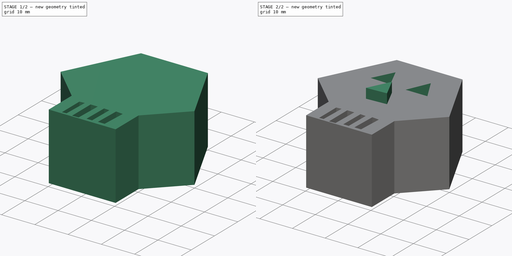
[diagram: build sequence overview — one tinted view per stage of 2, left to right]
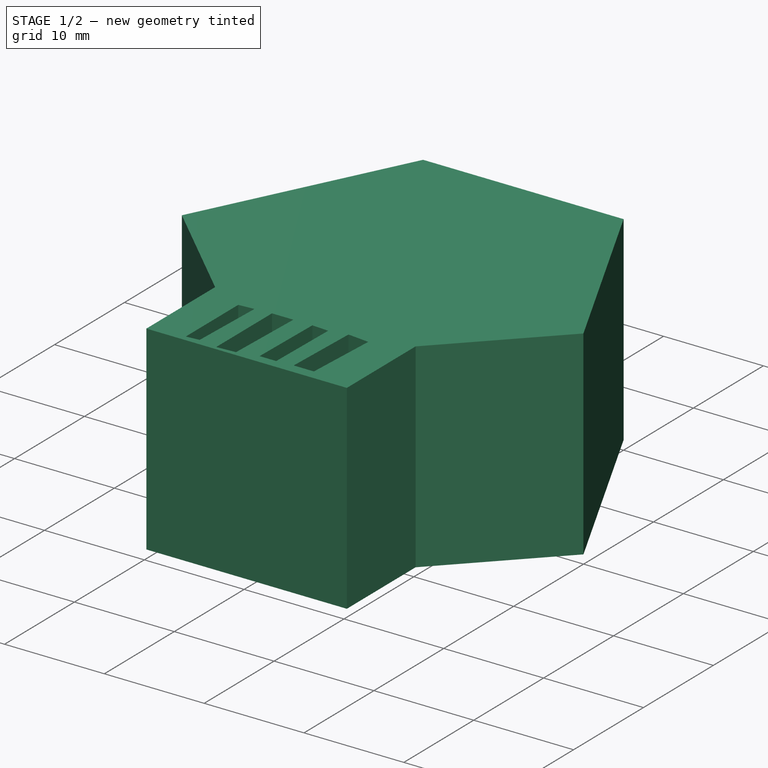
[diagram: stage 1 of 2 — iso view after this stage's code; geometry added in this stage tinted green]
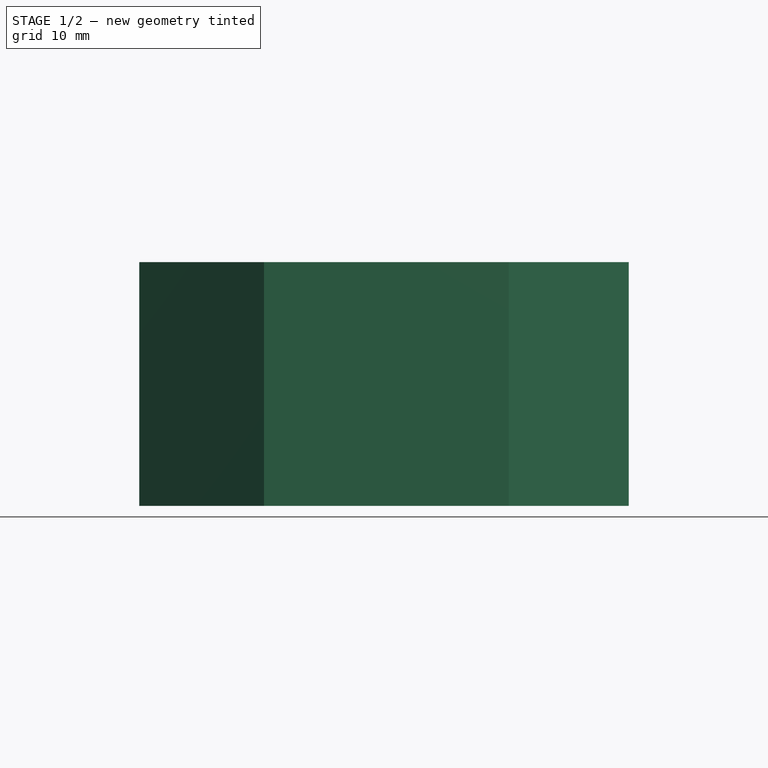
[diagram: stage 1 of 2 — front view after this stage's code; geometry added in this stage tinted green]
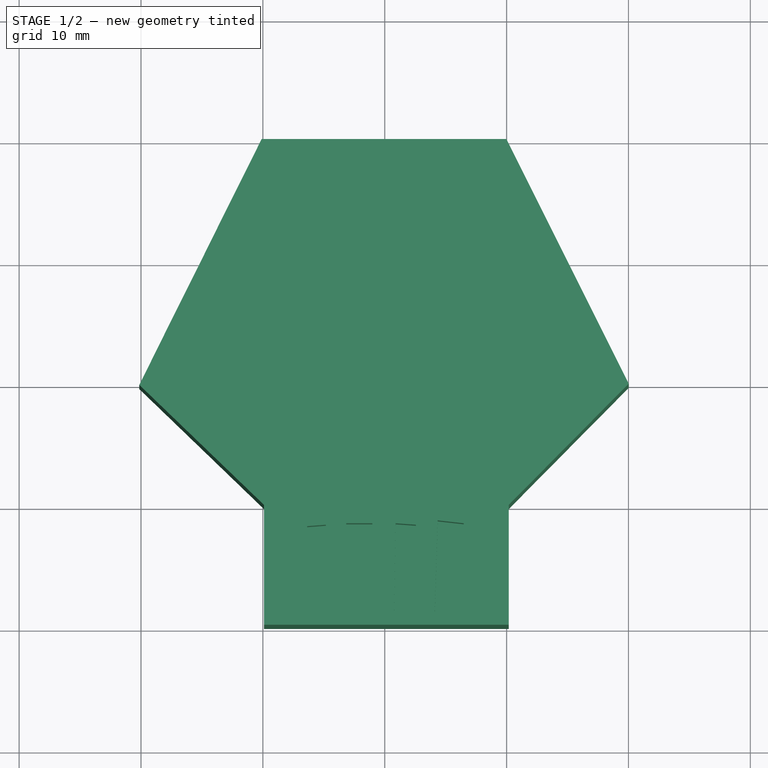
[diagram: stage 1 of 2 — top view after this stage's code; geometry added in this stage tinted green]
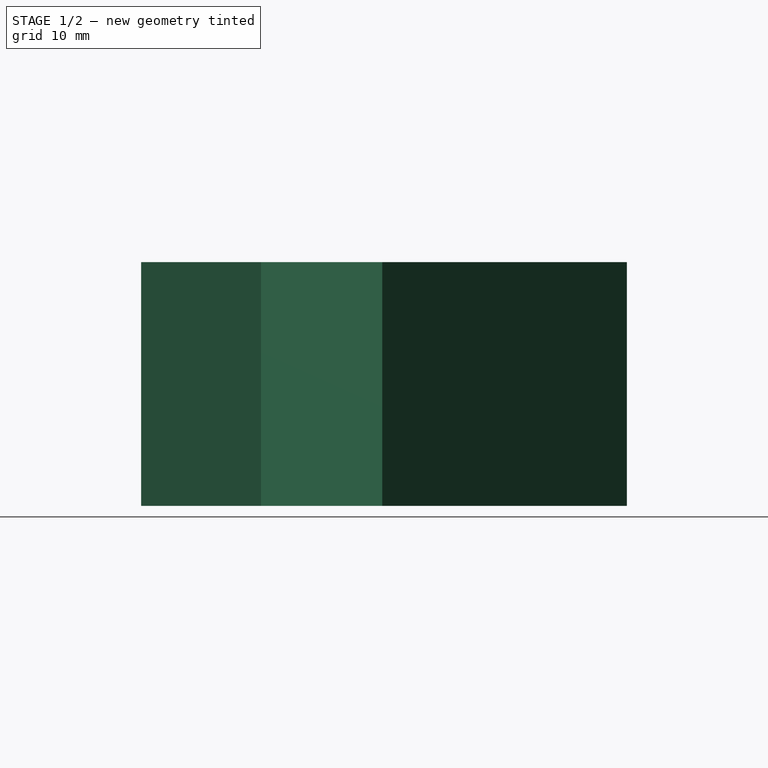
[diagram: stage 1 of 2 — right view after this stage's code; geometry added in this stage tinted green]
FCSTD DOCUMENT  (FreeCAD 0.21R33694 (Git))
Label: OJT1_T017_Calavera
License: All rights reserved
LicenseURL: https://en.wikipedia.org/wiki/All_rights_reserved
objects: Sketcher::SketchObject×5, PartDesign::Pad×2, PartDesign::Pocket×2, PartDesign::Body×1
note: 14 computed .brp shape members not serialized (recipe doc carries the construction recipe); baked Part::Feature solids carry a one-line shape summary decoded from their .brp

FEATURE [Sketcher::SketchObject] Sketch
  FullyConstrained = false
  MapMode = 5
  Support = -> [XY_Plane]
  sketch-geometry (8):
    g0: LineSegment StartX=-10.1011 StartY=30.0328 StartZ=0 EndX=9.97978 EndY=30.0328 EndZ=0
    g1: LineSegment StartX=9.97978 StartY=30.0328 StartZ=0 EndX=20.0202 EndY=9.95193 EndZ=0
    g2: LineSegment StartX=20.0202 StartY=9.95193 StartZ=0 EndX=10.1747 EndY=0 EndZ=0
    g3: LineSegment StartX=10.1747 StartY=0 StartZ=0 EndX=10.1747 EndY=-9.83648 EndZ=0
    g4: LineSegment StartX=10.1747 StartY=-9.83648 StartZ=0 EndX=-9.90611 EndY=-9.83648 EndZ=0
    g5: LineSegment StartX=-9.90611 StartY=-9.83648 StartZ=0 EndX=-9.90611 EndY=0 EndZ=0
    g6: LineSegment StartX=-9.90611 StartY=0 StartZ=0 EndX=-20.1415 EndY=9.85445 EndZ=0
    g7: LineSegment StartX=-20.1415 StartY=9.85445 StartZ=0 EndX=-10.1011 EndY=30.0328 EndZ=0
  constraints (14):
    c: Horizontal(g0)
    c: Coincident(g0,g1)
    c: Coincident(g1,g2)
    c: PointOnObject(g2,g-1)
    c: Coincident(g2,g3)
    c: Vertical(g3)
    c: Coincident(g3,g4)
    c: Horizontal(g4)
    c: Coincident(g4,g5)
    c: PointOnObject(g5,g-1)
    c: Vertical(g5)
    c: Coincident(g5,g6)
    c: Coincident(g6,g7)
    c: Coincident(g7,g0)
FEATURE [PartDesign::Pad] Pad
  Direction = (0,0,1)
  Length = 20
  Length2 = 10
  Profile = -> Sketch
  ReferenceAxis = -> Sketch [N_Axis]
  Type = 0
FEATURE [Sketcher::SketchObject] Sketch001
  FullyConstrained = false
  MapMode = 5
  Placement = pos=(0,0,20) rot=(0,0,1;0rad)
  Support = -> [Pad]
  sketch-geometry (22):
    g0: GeomPoint X=59.8256 Y=3.13669 Z=0
    g1: GeomPoint X=59.8256 Y=3.13669 Z=0
    g2: GeomPoint X=59.8256 Y=3.13669 Z=0
    g3: GeomPoint X=59.8256 Y=3.13669 Z=0
    g4: GeomPoint X=59.8256 Y=3.13669 Z=0
    g5: GeomPoint X=59.8256 Y=3.13669 Z=0
    g6: LineSegment StartX=-6.373 StartY=-1.74486 StartZ=0 EndX=-6.373 EndY=-9.24578 EndZ=0
    g7: LineSegment StartX=-6.373 StartY=-9.24578 StartZ=0 EndX=-5.06332 EndY=-9.12671 EndZ=0
    g8: LineSegment StartX=-5.06332 StartY=-9.12671 StartZ=0 EndX=-4.8252 EndY=-1.6258 EndZ=0
    g9: LineSegment StartX=-4.8252 StartY=-1.6258 StartZ=0 EndX=-6.373 EndY=-1.74486 EndZ=0
    g10: LineSegment StartX=-3.15833 StartY=-1.50673 StartZ=0 EndX=-3.15833 EndY=-9.4839 EndZ=0
    g11: LineSegment StartX=-3.15833 StartY=-9.4839 StartZ=0 EndX=-1.25333 EndY=-9.36484 EndZ=0
    g12: LineSegment StartX=-1.25333 StartY=-9.36484 StartZ=0 EndX=-1.01521 EndY=-1.50673 EndZ=0
    g13: LineSegment StartX=-1.01521 StartY=-1.50673 StartZ=0 EndX=-3.15833 EndY=-1.50673 EndZ=0
    g14: LineSegment StartX=0.889791 StartY=-1.50673 StartZ=0 EndX=0.770723 EndY=-8.88859 EndZ=0
    g15: LineSegment StartX=0.770723 StartY=-8.88859 StartZ=0 EndX=2.43759 EndY=-8.88859 EndZ=0
    g16: LineSegment StartX=2.43759 StartY=-8.88859 StartZ=0 EndX=2.55666 EndY=-1.6258 EndZ=0
    g17: LineSegment StartX=2.55666 StartY=-1.6258 StartZ=0 EndX=0.889791 EndY=-1.50673 EndZ=0
    g18: LineSegment StartX=4.34259 StartY=-1.26861 StartZ=0 EndX=4.10447 EndY=-8.76953 EndZ=0
    g19: LineSegment StartX=4.10447 StartY=-8.76953 StartZ=0 EndX=6.12852 EndY=-8.76953 EndZ=0
    g20: LineSegment StartX=6.12852 StartY=-8.76953 StartZ=0 EndX=6.48571 EndY=-1.50673 EndZ=0
    g21: LineSegment StartX=6.48571 StartY=-1.50673 StartZ=0 EndX=4.34259 EndY=-1.26861 EndZ=0
  constraints (16):
    c: Coincident(g6,g7)
    c: Coincident(g7,g8)
    c: Coincident(g8,g9)
    c: Coincident(g9,g6)
    c: Coincident(g10,g11)
    c: Coincident(g11,g12)
    c: Coincident(g12,g13)
    c: Coincident(g13,g10)
    c: Coincident(g14,g15)
    c: Coincident(g15,g16)
    c: Coincident(g16,g17)
    c: Coincident(g17,g14)
    c: Coincident(g18,g19)
    c: Coincident(g19,g20)
    c: Coincident(g20,g21)
    c: Coincident(g21,g18)
FEATURE [PartDesign::Pocket] Pocket
  BaseFeature = -> Pad
  Direction = (0,0,-1)
  Length = 5
  Length2 = 5
  Profile = -> Sketch001
  ReferenceAxis = -> Sketch001 [N_Axis]
  Type = 0
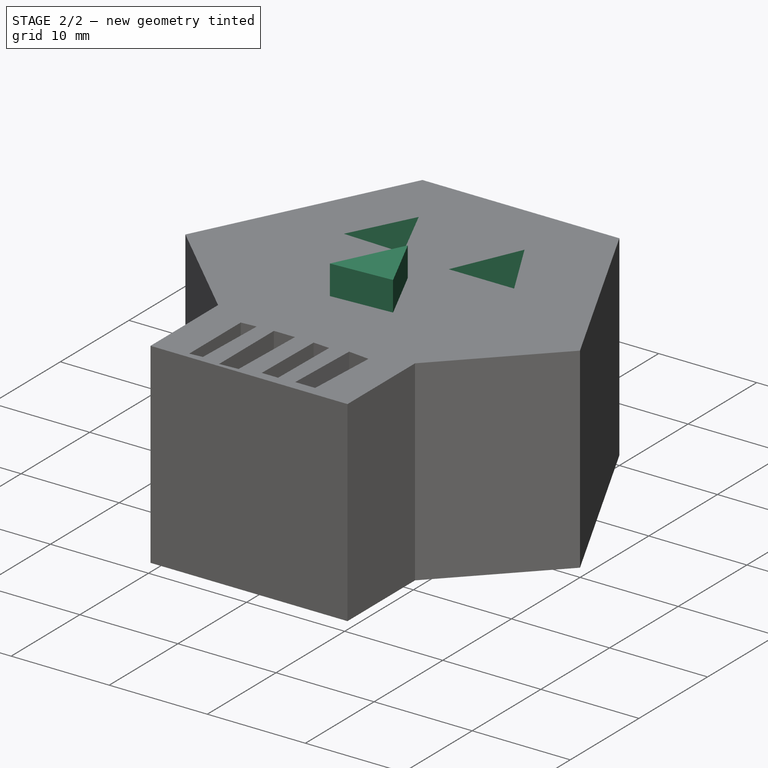
[diagram: stage 2 of 2 — iso view after this stage's code; geometry added in this stage tinted green]
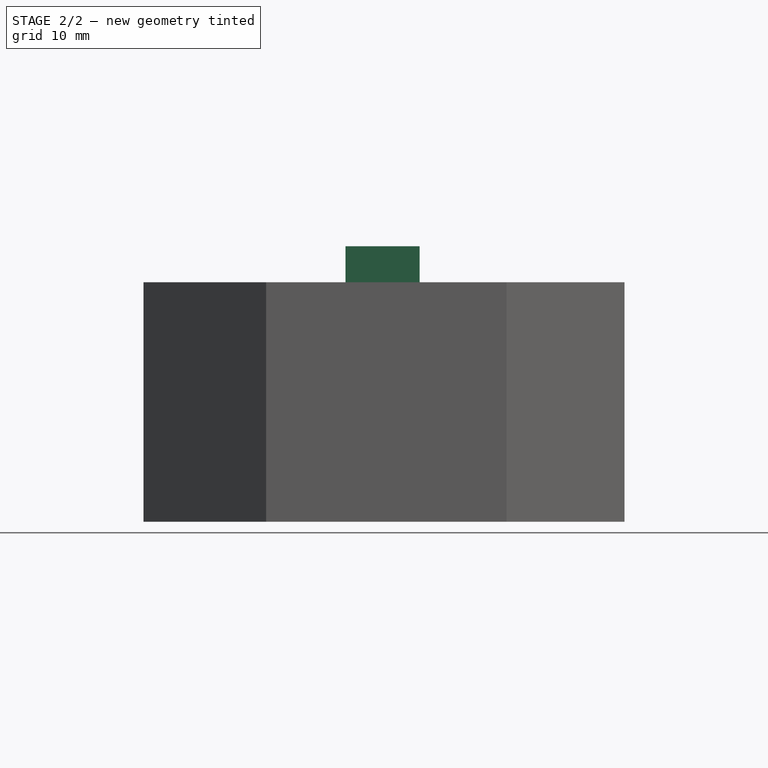
[diagram: stage 2 of 2 — front view after this stage's code; geometry added in this stage tinted green]
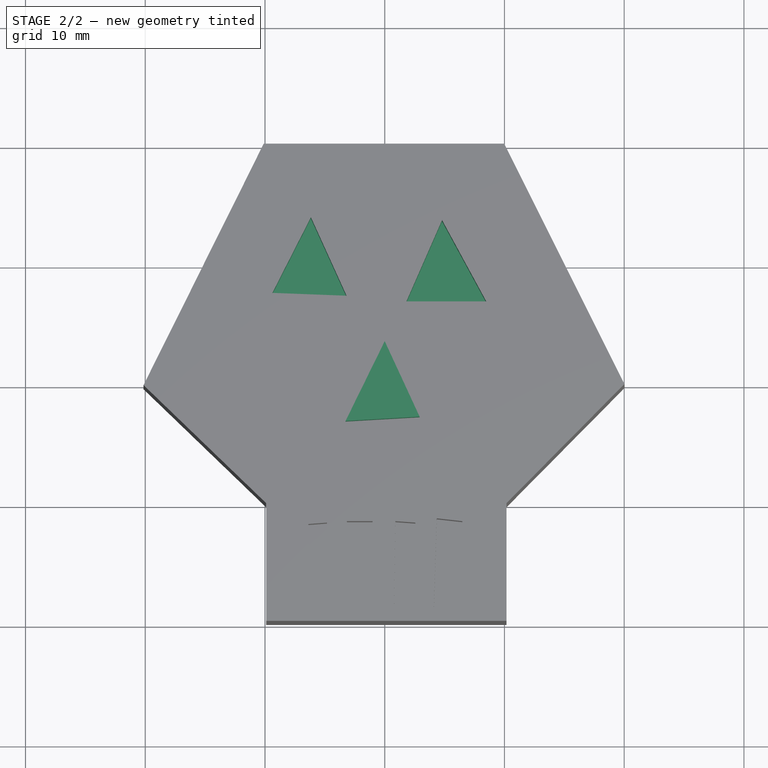
[diagram: stage 2 of 2 — top view after this stage's code; geometry added in this stage tinted green]
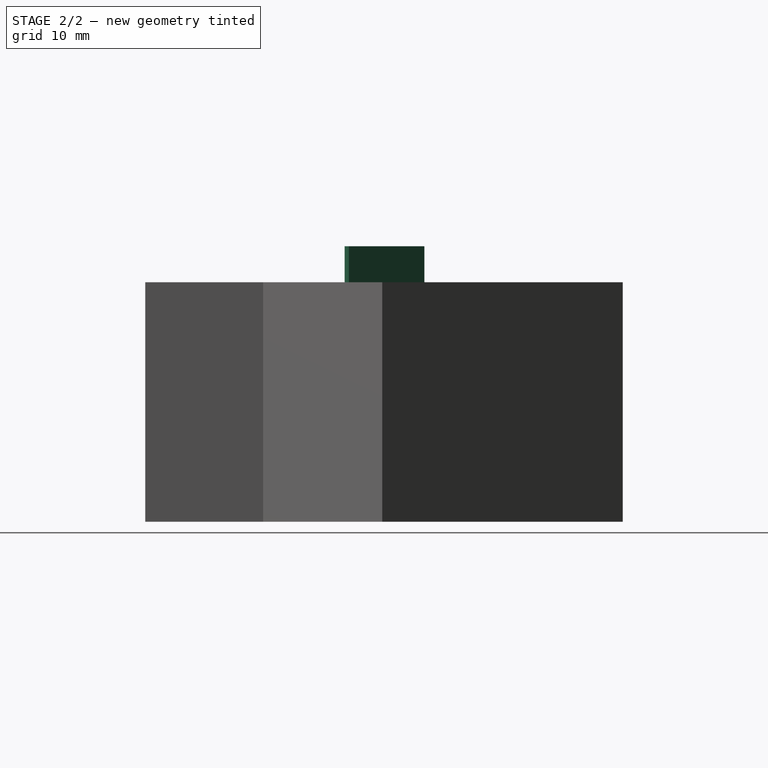
[diagram: stage 2 of 2 — right view after this stage's code; geometry added in this stage tinted green]
FEATURE [Sketcher::SketchObject] Sketch002
  FullyConstrained = false
  MapMode = 5
  Placement = pos=(0,0,20) rot=(0,0,1;0rad)
  Support = -> [Pocket]
  sketch-geometry (6):
    g0: LineSegment StartX=-6.16572 StartY=23.8723 StartZ=0 EndX=-9.3804 EndY=17.562 EndZ=0
    g1: LineSegment StartX=-9.3804 StartY=17.562 StartZ=0 EndX=-3.18917 EndY=17.3238 EndZ=0
    g2: LineSegment StartX=-3.18917 StartY=17.3238 StartZ=0 EndX=-6.16572 EndY=23.8723 EndZ=0
    g3: LineSegment StartX=4.788 StartY=23.6341 StartZ=0 EndX=1.81144 EndY=16.8476 EndZ=0
    g4: LineSegment StartX=1.81144 StartY=16.8476 StartZ=0 EndX=8.47892 EndY=16.8476 EndZ=0
    g5: LineSegment StartX=8.47892 StartY=16.8476 StartZ=0 EndX=4.788 EndY=23.6341 EndZ=0
  constraints (7):
    c: Coincident(g0,g1)
    c: Coincident(g1,g2)
    c: Coincident(g2,g0)
    c: Coincident(g3,g4)
    c: Horizontal(g4)
    c: Coincident(g4,g5)
    c: Coincident(g5,g3)
FEATURE [PartDesign::Pocket] Pocket001
  BaseFeature = -> Pocket
  Direction = (0,0,-1)
  Length = 5
  Length2 = 5
  Profile = -> Sketch002
  ReferenceAxis = -> Sketch002 [N_Axis]
  Type = 0
FEATURE [Sketcher::SketchObject] Sketch003
  FullyConstrained = true
  MapMode = 5
  Placement = pos=(0,0,20) rot=(0,0,1;0rad)
  Support = -> [Pocket001]
FEATURE [Sketcher::SketchObject] Sketch004
  FullyConstrained = false
  MapMode = 5
  Placement = pos=(0,0,20) rot=(0,0,1;0rad)
  Support = -> [Pocket001]
  sketch-geometry (3):
    g0: LineSegment StartX=0 StartY=13.4753 StartZ=0 EndX=-3.27434 EndY=6.80787 EndZ=0
    g1: LineSegment StartX=-3.27434 StartY=6.80787 StartZ=0 EndX=2.9169 EndY=7.16505 EndZ=0
    g2: LineSegment StartX=2.9169 StartY=7.16505 StartZ=0 EndX=0 EndY=13.4753 EndZ=0
  constraints (4):
    c: PointOnObject(g0,g-2)
    c: Coincident(g0,g1)
    c: Coincident(g1,g2)
    c: Coincident(g2,g0)
FEATURE [PartDesign::Pad] Pad001
  BaseFeature = -> Pocket001
  Direction = (0,0,1)
  Length = 3
  Length2 = 10
  Profile = -> Sketch004
  ReferenceAxis = -> Sketch004 [N_Axis]
  Type = 0
FEATURE [PartDesign::Body] Body
  Group = -> [Sketch,Pad,Sketch001,Pocket,Sketch002,Pocket001,Sketch003,Sketch004,Pad001]
  Origin = -> Origin
  Tip = -> Pad001
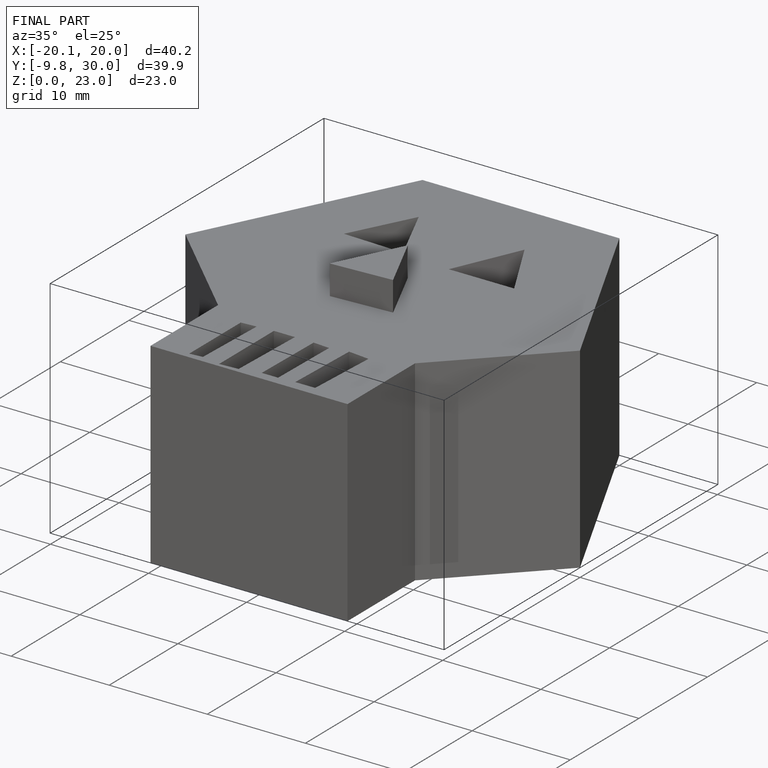
[diagram: finished part — iso view with bounding-box wireframe]
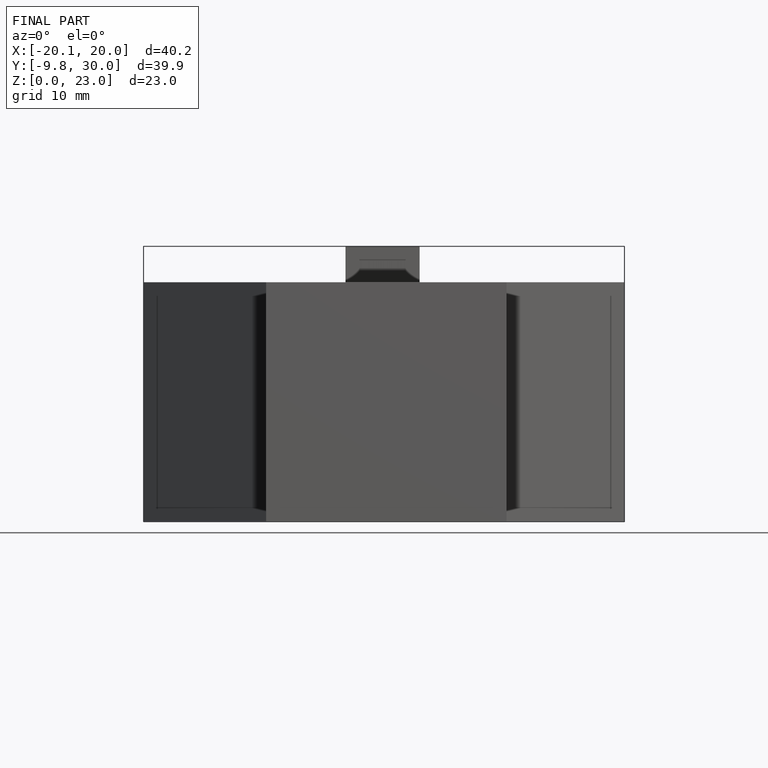
[diagram: finished part — front view with bounding-box wireframe]
